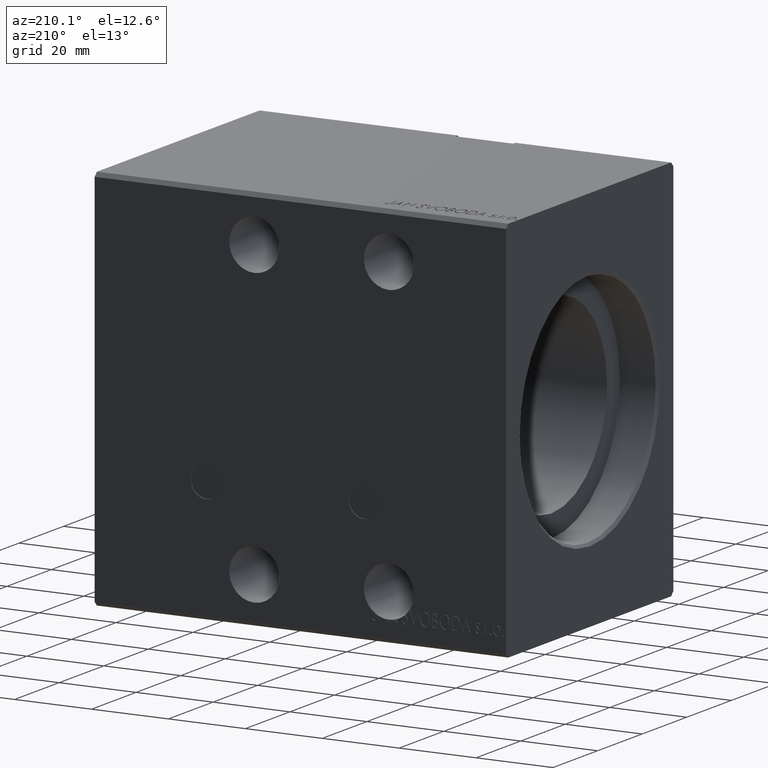
[diagram: clean part render]
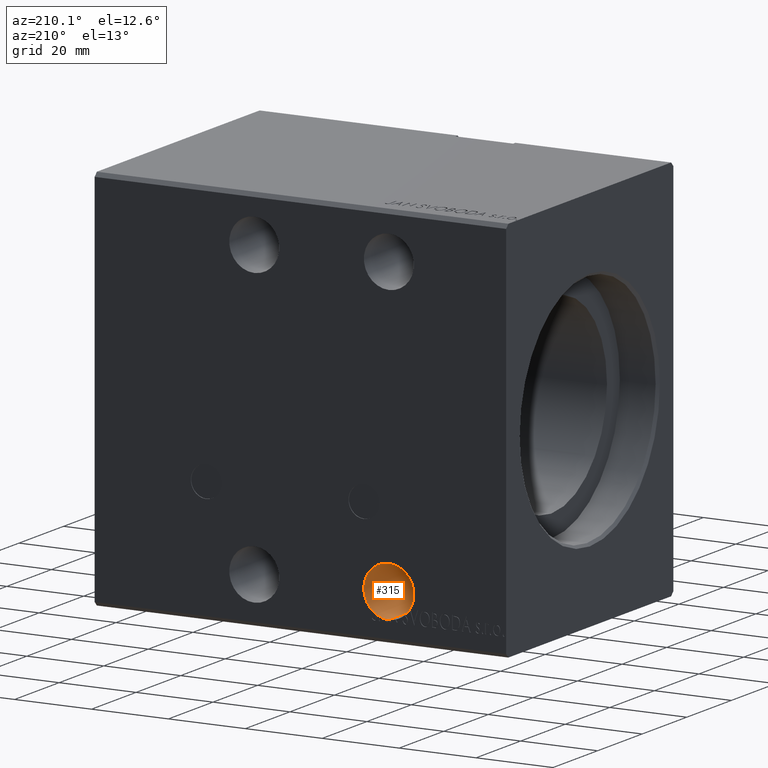
[diagram: same view with one face highlighted and labeled with its STEP entity id]
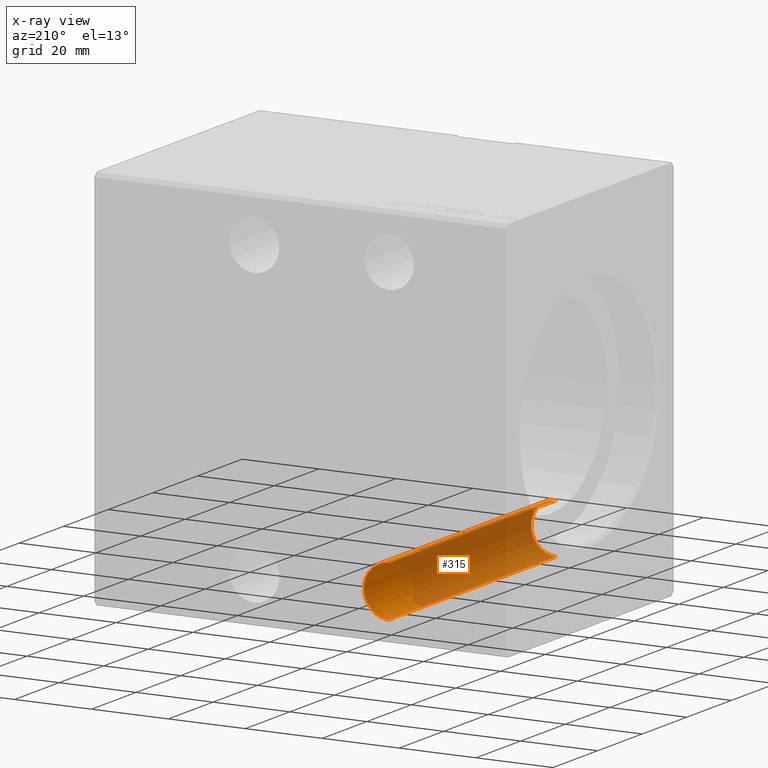
[diagram: x-ray of the same camera — body ghosted, the highlighted face saturated]
A machine part, auxiliary view. The second image highlights one B-rep face of the part: STEP entity #315.
The next image is the same camera in x-ray: the body ghosted, the highlighted face saturated — about 76% of this face is hidden behind the body in this view.
In plain terms, the highlighted cylindrical surface (edge-blend (fillet) strip) has radius 6.5 mm, axis along (-0, -1, -0).
Its self-contained STEP definition (entity closure, byte-faithful):
#52 = ORIENTED_EDGE ( 'NONE', *, *, #9747, .F. ) ;
#125 = CARTESIAN_POINT ( 'NONE',  ( 30.50000000000000000, 37.29999999999999005, -38.00000000000000000 ) ) ;
#315 = ADVANCED_FACE ( 'NONE', ( #477 ), #32201, .F. ) ;
#477 = FACE_OUTER_BOUND ( 'NONE', #39034, .T. ) ;
#485 = VERTEX_POINT ( 'NONE', #23519 ) ;
#697 = DIRECTION ( 'NONE',  ( -0.000000000000000000, -1.000000000000000000, -5.507058653894625853E-17 ) ) ;
#746 = CIRCLE ( 'NONE', #39572, 6.499999999999999112 ) ;
#959 = VECTOR ( 'NONE', #11841, 1000.000000000000000 ) ;
#2480 = ORIENTED_EDGE ( 'NONE', *, *, #8893, .T. ) ;
#2663 = CARTESIAN_POINT ( 'NONE',  ( 30.50000000000000000, -37.50000000000001421, -31.50000000000000711 ) ) ;
#3364 = DIRECTION ( 'NONE',  ( -0.000000000000000000, -1.000000000000000000, -5.507058653894625853E-17 ) ) ;
#3532 = ORIENTED_EDGE ( 'NONE', *, *, #26836, .F. ) ;
#3738 = ORIENTED_EDGE ( 'NONE', *, *, #19266, .F. ) ;
#4017 = VERTEX_POINT ( 'NONE', #2663 ) ;
#4145 = CARTESIAN_POINT ( 'NONE',  ( 30.50000000000000000, 37.29999999999999005, -38.00000000000000000 ) ) ;
#4380 = VECTOR ( 'NONE', #21818, 1000.000000000000000 ) ;
#4432 = EDGE_CURVE ( 'NONE', #8416, #23047, #22187, .T. ) ;
#4653 = CARTESIAN_POINT ( 'NONE',  ( 30.50000000000000000, 37.50000000000002842, -38.00000000000000000 ) ) ;
#5056 = DIRECTION ( 'NONE',  ( 0.000000000000000000, 0.000000000000000000, 1.000000000000000000 ) ) ;
#5155 = CARTESIAN_POINT ( 'NONE',  ( 30.99318497280284035, 37.50000000000002842, -44.48126288485519808 ) ) ;
#5181 = EDGE_CURVE ( 'NONE', #5578, #23047, #33196, .T. ) ;
#5357 = ORIENTED_EDGE ( 'NONE', *, *, #29125, .T. ) ;
#5578 = VERTEX_POINT ( 'NONE', #29127 ) ;
#7051 = DIRECTION ( 'NONE',  ( 0.000000000000000000, 1.000000000000000000, -0.000000000000000000 ) ) ;
#7322 = VERTEX_POINT ( 'NONE', #32394 ) ;
#8416 = VERTEX_POINT ( 'NONE', #9912 ) ;
#8839 = DIRECTION ( 'NONE',  ( 0.000000000000000000, 1.000000000000000000, 5.507058653894625853E-17 ) ) ;
#8880 = VECTOR ( 'NONE', #8839, 1000.000000000000000 ) ;
#8893 = EDGE_CURVE ( 'NONE', #19745, #4017, #24752, .T. ) ;
#9039 = EDGE_CURVE ( 'NONE', #24691, #26154, #29334, .T. ) ;
#9070 = DIRECTION ( 'NONE',  ( 0.000000000000000000, 0.000000000000000000, 1.000000000000000000 ) ) ;
#9092 = LINE ( 'NONE', #21662, #38282 ) ;
#9683 = AXIS2_PLACEMENT_3D ( 'NONE', #125, #12685, #38045 ) ;
#9747 = EDGE_CURVE ( 'NONE', #37973, #12597, #22826, .T. ) ;
#9912 = CARTESIAN_POINT ( 'NONE',  ( 31.29599030024982653, 37.29999999999999005, -44.45107738613544512 ) ) ;
#10740 = VECTOR ( 'NONE', #697, 1000.000000000000000 ) ;
#11656 = DIRECTION ( 'NONE',  ( 0.000000000000000000, 0.000000000000000000, 1.000000000000000000 ) ) ;
#11841 = DIRECTION ( 'NONE',  ( -0.000000000000000000, -1.000000000000000000, -5.507058653894625853E-17 ) ) ;
#12148 = CARTESIAN_POINT ( 'NONE',  ( 30.50000000000000000, 37.30000000000000426, -38.00000000000000000 ) ) ;
#12414 = EDGE_CURVE ( 'NONE', #12597, #19359, #18215, .T. ) ;
#12597 = VERTEX_POINT ( 'NONE', #40331 ) ;
#12685 = DIRECTION ( 'NONE',  ( 0.000000000000000000, 1.000000000000000000, -0.000000000000000000 ) ) ;
#12858 = AXIS2_PLACEMENT_3D ( 'NONE', #12148, #39981, #9070 ) ;
#13060 = CARTESIAN_POINT ( 'NONE',  ( 30.50000000000000000, 37.50000000000002842, -31.50000000000000000 ) ) ;
#13561 = VERTEX_POINT ( 'NONE', #30806 ) ;
#13943 = EDGE_CURVE ( 'NONE', #8416, #28807, #26041, .T. ) ;
#14226 = ORIENTED_EDGE ( 'NONE', *, *, #4432, .F. ) ;
#14527 = LINE ( 'NONE', #33702, #959 ) ;
#15206 = ORIENTED_EDGE ( 'NONE', *, *, #16126, .F. ) ;
#15584 = CIRCLE ( 'NONE', #9683, 6.499999999999999112 ) ;
#15591 = DIRECTION ( 'NONE',  ( 0.000000000000000000, 1.000000000000000000, 5.507058653894625853E-17 ) ) ;
#15599 = VECTOR ( 'NONE', #17720, 1000.000000000000000 ) ;
#16021 = LINE ( 'NONE', #28606, #4380 ) ;
#16126 = EDGE_CURVE ( 'NONE', #19359, #485, #16021, .T. ) ;
#16351 = ORIENTED_EDGE ( 'NONE', *, *, #12414, .F. ) ;
#16621 = DIRECTION ( 'NONE',  ( -0.000000000000000000, -1.000000000000000000, -5.507058653894625853E-17 ) ) ;
#16905 = DIRECTION ( 'NONE',  ( -0.000000000000000000, 1.000000000000000000, 5.507058653894625853E-17 ) ) ;
#16971 = CARTESIAN_POINT ( 'NONE',  ( 33.56410256410256920, 37.50000000000002842, -43.73247551034106806 ) ) ;
#17217 = DIRECTION ( 'NONE',  ( -0.000000000000000000, 1.000000000000000000, 5.507058653894625853E-17 ) ) ;
#17435 = ORIENTED_EDGE ( 'NONE', *, *, #25002, .T. ) ;
#17498 = EDGE_CURVE ( 'NONE', #24691, #28807, #33398, .T. ) ;
#17505 = ORIENTED_EDGE ( 'NONE', *, *, #5181, .T. ) ;
#17599 = CARTESIAN_POINT ( 'NONE',  ( 30.50000000000000000, -37.50000000000001421, -44.50000000000000711 ) ) ;
#17680 = CARTESIAN_POINT ( 'NONE',  ( 30.50000000000000000, 37.50000000000002842, -44.50000000000000000 ) ) ;
#17720 = DIRECTION ( 'NONE',  ( -0.000000000000000000, -1.000000000000000000, -5.507058653894625853E-17 ) ) ;
#18102 = ORIENTED_EDGE ( 'NONE', *, *, #30208, .F. ) ;
#18215 = CIRCLE ( 'NONE', #12858, 6.499999999999999112 ) ;
#18328 = CARTESIAN_POINT ( 'NONE',  ( 32.81813518084482695, 37.50000000000002842, -44.07258176423582796 ) ) ;
#18584 = CARTESIAN_POINT ( 'NONE',  ( 32.55509697384804468, 37.29999999999999005, -44.16656925916515064 ) ) ;
#19030 = CARTESIAN_POINT ( 'NONE',  ( 31.29599030024982653, 37.50000000000002842, -44.45107738613544512 ) ) ;
#19070 = EDGE_CURVE ( 'NONE', #13561, #485, #30390, .T. ) ;
#19266 = EDGE_CURVE ( 'NONE', #5578, #20914, #9092, .T. ) ;
#19359 = VERTEX_POINT ( 'NONE', #19585 ) ;
#19585 = CARTESIAN_POINT ( 'NONE',  ( 33.83333333333333570, 37.30000000000000426, -43.58022301426106537 ) ) ;
#19745 = VERTEX_POINT ( 'NONE', #17599 ) ;
#19822 = DIRECTION ( 'NONE',  ( -0.000000000000000000, 1.000000000000000000, 5.507058653894625853E-17 ) ) ;
#20040 = LINE ( 'NONE', #13060, #10740 ) ;
#20773 = VECTOR ( 'NONE', #16621, 1000.000000000000000 ) ;
#20914 = VERTEX_POINT ( 'NONE', #18584 ) ;
#21145 = ORIENTED_EDGE ( 'NONE', *, *, #13943, .T. ) ;
#21662 = CARTESIAN_POINT ( 'NONE',  ( 32.55509697384804468, 37.50000000000002842, -44.16656925916515064 ) ) ;
#21818 = DIRECTION ( 'NONE',  ( 0.000000000000000000, 1.000000000000000000, 5.507058653894625853E-17 ) ) ;
#22187 = LINE ( 'NONE', #37440, #39115 ) ;
#22323 = DIRECTION ( 'NONE',  ( 0.000000000000000000, 0.000000000000000000, -1.000000000000000000 ) ) ;
#22698 = DIRECTION ( 'NONE',  ( 0.000000000000000000, 0.000000000000000000, 1.000000000000000000 ) ) ;
#22720 = CARTESIAN_POINT ( 'NONE',  ( 30.50000000000000000, 37.50000000000002842, -38.00000000000000000 ) ) ;
#22826 = LINE ( 'NONE', #25713, #20773 ) ;
#23047 = VERTEX_POINT ( 'NONE', #19030 ) ;
#23519 = CARTESIAN_POINT ( 'NONE',  ( 33.83333333333333570, 37.50000000000002842, -43.58022301426106537 ) ) ;
#24691 = VERTEX_POINT ( 'NONE', #27907 ) ;
#24752 = CIRCLE ( 'NONE', #26701, 6.499999999999999112 ) ;
#25002 = EDGE_CURVE ( 'NONE', #37973, #7322, #746, .T. ) ;
#25713 = CARTESIAN_POINT ( 'NONE',  ( 33.56410256410256920, 37.50000000000002842, -43.73247551034106806 ) ) ;
#26041 = CIRCLE ( 'NONE', #32620, 6.499999999999999112 ) ;
#26154 = VERTEX_POINT ( 'NONE', #17680 ) ;
#26701 = AXIS2_PLACEMENT_3D ( 'NONE', #32690, #35781, #35400 ) ;
#26836 = EDGE_CURVE ( 'NONE', #39695, #7322, #37079, .T. ) ;
#27182 = AXIS2_PLACEMENT_3D ( 'NONE', #31591, #3364, #22323 ) ;
#27907 = CARTESIAN_POINT ( 'NONE',  ( 30.99318497280284035, 37.50000000000002842, -44.48126288485519808 ) ) ;
#28545 = ORIENTED_EDGE ( 'NONE', *, *, #39910, .T. ) ;
#28606 = CARTESIAN_POINT ( 'NONE',  ( 33.83333333333333570, 37.50000000000002842, -43.58022301426106537 ) ) ;
#28807 = VERTEX_POINT ( 'NONE', #33604 ) ;
#29125 = EDGE_CURVE ( 'NONE', #26154, #19745, #14527, .T. ) ;
#29127 = CARTESIAN_POINT ( 'NONE',  ( 32.55509697384804468, 37.50000000000002842, -44.16656925916515064 ) ) ;
#29334 = CIRCLE ( 'NONE', #39862, 6.499999999999999112 ) ;
#29670 = CARTESIAN_POINT ( 'NONE',  ( 30.50000000000000000, 37.50000000000002842, -38.00000000000000000 ) ) ;
#30208 = EDGE_CURVE ( 'NONE', #13561, #4017, #20040, .T. ) ;
#30390 = CIRCLE ( 'NONE', #33049, 6.499999999999999112 ) ;
#30806 = CARTESIAN_POINT ( 'NONE',  ( 30.50000000000000000, 37.50000000000002842, -31.50000000000000000 ) ) ;
#31591 = CARTESIAN_POINT ( 'NONE',  ( 30.50000000000000000, 37.50000000000002842, -38.00000000000000000 ) ) ;
#32201 = CYLINDRICAL_SURFACE ( 'NONE', #27182, 6.499999999999999112 ) ;
#32394 = CARTESIAN_POINT ( 'NONE',  ( 32.81813518084482695, 37.50000000000002842, -44.07258176423582796 ) ) ;
#32620 = AXIS2_PLACEMENT_3D ( 'NONE', #4145, #7051, #32786 ) ;
#32690 = CARTESIAN_POINT ( 'NONE',  ( 30.50000000000000000, -37.50000000000001421, -38.00000000000000711 ) ) ;
#32786 = DIRECTION ( 'NONE',  ( -1.974915957265903801E-14, 0.000000000000000000, -1.000000000000000000 ) ) ;
#32907 = CARTESIAN_POINT ( 'NONE',  ( 32.81813518084482695, 37.29999999999999005, -44.07258176423582796 ) ) ;
#33049 = AXIS2_PLACEMENT_3D ( 'NONE', #22720, #19822, #37988 ) ;
#33196 = CIRCLE ( 'NONE', #38447, 6.499999999999999112 ) ;
#33398 = LINE ( 'NONE', #5155, #15599 ) ;
#33604 = CARTESIAN_POINT ( 'NONE',  ( 30.99318497280284035, 37.29999999999999005, -44.48126288485519808 ) ) ;
#33691 = CARTESIAN_POINT ( 'NONE',  ( 30.50000000000000000, 37.50000000000002842, -38.00000000000000000 ) ) ;
#33702 = CARTESIAN_POINT ( 'NONE',  ( 30.50000000000000000, 37.50000000000002842, -44.50000000000000000 ) ) ;
#34249 = DIRECTION ( 'NONE',  ( -0.000000000000000000, -1.000000000000000000, -5.507058653894625853E-17 ) ) ;
#34571 = ORIENTED_EDGE ( 'NONE', *, *, #17498, .F. ) ;
#35180 = ORIENTED_EDGE ( 'NONE', *, *, #19070, .T. ) ;
#35400 = DIRECTION ( 'NONE',  ( 0.000000000000000000, 0.000000000000000000, 1.000000000000000000 ) ) ;
#35781 = DIRECTION ( 'NONE',  ( 0.000000000000000000, -1.000000000000000000, -0.000000000000000000 ) ) ;
#37079 = LINE ( 'NONE', #18328, #8880 ) ;
#37440 = CARTESIAN_POINT ( 'NONE',  ( 31.29599030024982653, 37.50000000000002842, -44.45107738613544512 ) ) ;
#37973 = VERTEX_POINT ( 'NONE', #16971 ) ;
#37988 = DIRECTION ( 'NONE',  ( 0.000000000000000000, 0.000000000000000000, 1.000000000000000000 ) ) ;
#38045 = DIRECTION ( 'NONE',  ( -6.938893903907229167E-15, 0.000000000000000000, -1.000000000000000000 ) ) ;
#38282 = VECTOR ( 'NONE', #34249, 1000.000000000000000 ) ;
#38447 = AXIS2_PLACEMENT_3D ( 'NONE', #33691, #39258, #5056 ) ;
#38963 = ORIENTED_EDGE ( 'NONE', *, *, #9039, .T. ) ;
#39034 = EDGE_LOOP ( 'NONE', ( #18102, #35180, #15206, #16351, #52, #17435, #3532, #28545, #3738, #17505, #14226, #21145, #34571, #38963, #5357, #2480 ) ) ;
#39115 = VECTOR ( 'NONE', #15591, 1000.000000000000000 ) ;
#39258 = DIRECTION ( 'NONE',  ( -0.000000000000000000, 1.000000000000000000, 5.507058653894625853E-17 ) ) ;
#39572 = AXIS2_PLACEMENT_3D ( 'NONE', #29670, #16905, #22698 ) ;
#39695 = VERTEX_POINT ( 'NONE', #32907 ) ;
#39862 = AXIS2_PLACEMENT_3D ( 'NONE', #4653, #17217, #11656 ) ;
#39910 = EDGE_CURVE ( 'NONE', #39695, #20914, #15584, .T. ) ;
#39981 = DIRECTION ( 'NONE',  ( -0.000000000000000000, -1.000000000000000000, -0.000000000000000000 ) ) ;
#40331 = CARTESIAN_POINT ( 'NONE',  ( 33.56410256410256920, 37.30000000000000426, -43.73247551034106806 ) ) ;